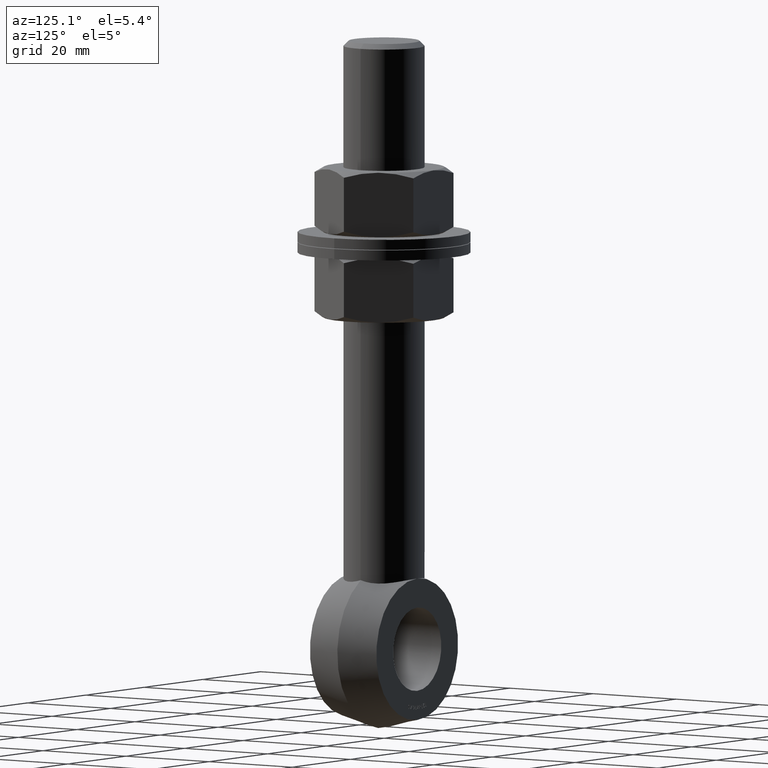
[diagram: clean part render]
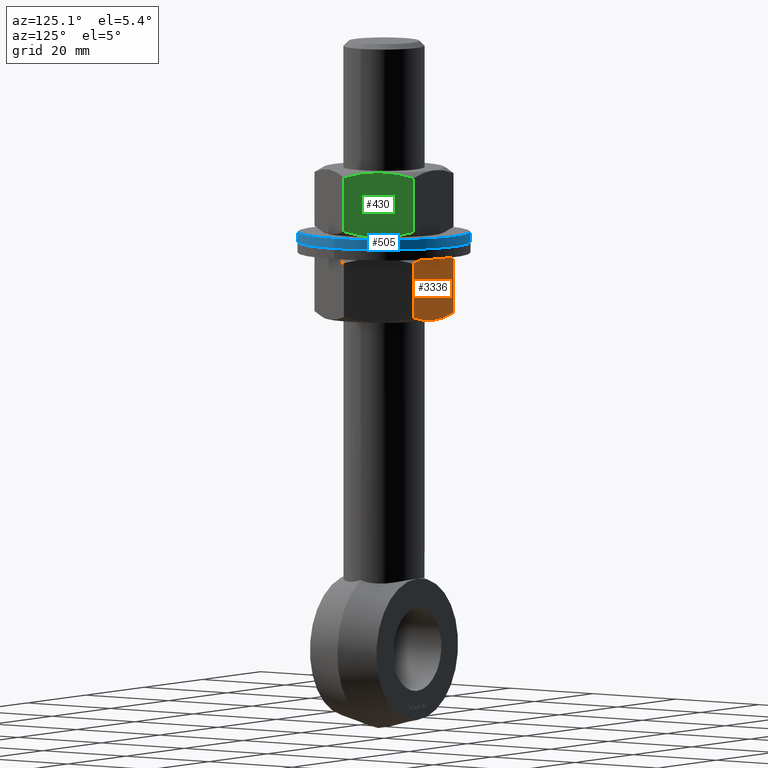
[diagram: same view with three faces highlighted in distinct colors, each labeled with its STEP entity id]
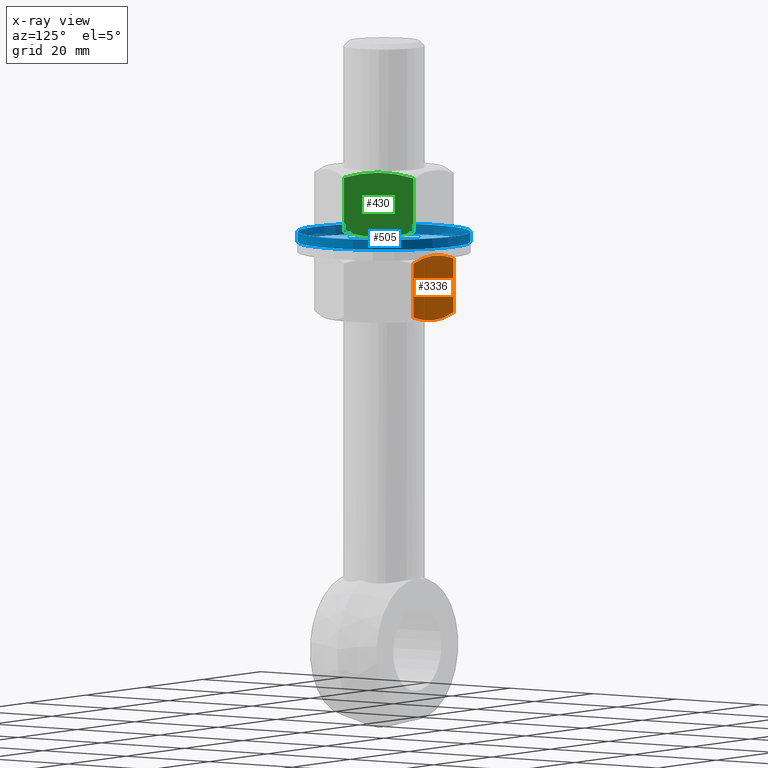
[diagram: x-ray of the same camera — body ghosted, the three highlighted faces saturated]
A machine part, auxiliary view with three faces highlighted in distinct colors.
The next image is the same camera in x-ray (body ghosted, the three faces saturated) — at least one of them is partly hidden behind the body in this view.
Their STEP definitions:

[orange] entity #3336 — the highlighted planar face has unit normal (0, -1, -0).
#224 = DIRECTION ( 'NONE',  ( 1.262449242636256169E-16, 1.000000000000000000, 4.721171583906912730E-46 ) ) ;
#329 = VERTEX_POINT ( 'NONE', #1410 ) ;
#398 = VECTOR ( 'NONE', #788, 1000.000000000000000 ) ;
#426 = CARTESIAN_POINT ( 'NONE',  ( 6.870468203356445258, -11.89999999999980318, -5.337134870022873123 ) ) ;
#608 = CARTESIAN_POINT ( 'NONE',  ( -6.870468203356448811, -11.89999999999980140, 5.337134870023213296 ) ) ;
#617 = EDGE_CURVE ( 'NONE', #3861, #4708, #2948, .T. ) ;
#707 = EDGE_CURVE ( 'NONE', #5217, #4892, #4373, .T. ) ;
#744 = CARTESIAN_POINT ( 'NONE',  ( 6.870468203356445258, -11.89999999999980318, 6.399999999999988809 ) ) ;
#788 = DIRECTION ( 'NONE',  ( -3.900098264966522650E-47, -5.460137570953213873E-46, -1.000000000000000000 ) ) ;
#973 = CARTESIAN_POINT ( 'NONE',  ( -5.752222429522607428, -11.89999999999980140, -5.659944619294646984 ) ) ;
#994 = CARTESIAN_POINT ( 'NONE',  ( -9.227774253162104057E-16, -11.89999999999979963, -6.399999999999648637 ) ) ;
#1125 = CARTESIAN_POINT ( 'NONE',  ( -4.608077819394150509, -11.89999999999979607, 5.930333993001640991 ) ) ;
#1217 = CARTESIAN_POINT ( 'NONE',  ( -6.870468203356448811, -11.89999999999980140, 6.399999999999988809 ) ) ;
#1398 = CARTESIAN_POINT ( 'NONE',  ( -2.315302811759795354, -11.89999999999979963, -6.300079486347296864 ) ) ;
#1400 = ORIENTED_EDGE ( 'NONE', *, *, #3161, .T. ) ;
#1410 = CARTESIAN_POINT ( 'NONE',  ( 6.870468203356445258, -11.89999999999980318, 5.337134870023213296 ) ) ;
#1608 = EDGE_CURVE ( 'NONE', #329, #4604, #4629, .T. ) ;
#1671 = ORIENTED_EDGE ( 'NONE', *, *, #1608, .F. ) ;
#1879 = CARTESIAN_POINT ( 'NONE',  ( 6.870468203356445258, -11.89999999999980318, -5.337134870022873123 ) ) ;
#1949 = CARTESIAN_POINT ( 'NONE',  ( 4.634016648922544945, -11.89999999999980496, -5.924878737540974605 ) ) ;
#2102 = CARTESIAN_POINT ( 'NONE',  ( 2.913877163291768824, -11.89999999999979963, 6.204165162460036242 ) ) ;
#2129 = CARTESIAN_POINT ( 'NONE',  ( -8.283902635212715443E-16, -11.89999999999979963, 6.399999999999988809 ) ) ;
#2302 = CARTESIAN_POINT ( 'NONE',  ( -6.870468203356448811, -11.89999999999980140, -5.337134870022873123 ) ) ;
#2344 = CARTESIAN_POINT ( 'NONE',  ( -9.227774253162104057E-16, -11.89999999999979963, -6.399999999999648637 ) ) ;
#2426 = ORIENTED_EDGE ( 'NONE', *, *, #3290, .T. ) ;
#2527 = EDGE_LOOP ( 'NONE', ( #1671, #2426, #4761, #4010, #5154, #1400 ) ) ;
#2579 = CARTESIAN_POINT ( 'NONE',  ( 2.335116152548812885, -11.89999999999980318, 6.276953164494057269 ) ) ;
#2589 = CARTESIAN_POINT ( 'NONE',  ( -1.161822609306351506, -11.89999999999980318, 6.400000000000101608 ) ) ;
#2638 = DIRECTION ( 'NONE',  ( -3.900098264966522650E-47, -5.460137570953213873E-46, -1.000000000000000000 ) ) ;
#2750 = B_SPLINE_CURVE_WITH_KNOTS ( 'NONE', 3,
 ( #994, #3751, #4228, #4702, #3828, #1949, #5169, #426 ),
 .UNSPECIFIED., .F., .F.,
 ( 4, 2, 2, 4 ),
 ( 0.01949334953155952913, 0.02123285677875558913, 0.02297236402595164567, 0.02645137852034376569 ),
 .UNSPECIFIED. ) ;
#2948 = B_SPLINE_CURVE_WITH_KNOTS ( 'NONE', 3,
 ( #4947, #2589, #3949, #1125, #3427, #608 ),
 .UNSPECIFIED., .F., .F.,
 ( 4, 2, 4 ),
 ( 0.03802109468498315881, 0.04149994113464822859, 0.04497878758431329838 ),
 .UNSPECIFIED. ) ;
#3005 = CARTESIAN_POINT ( 'NONE',  ( -6.870468203356448811, -11.89999999999980140, 6.399999999999988809 ) ) ;
#3161 = EDGE_CURVE ( 'NONE', #4892, #4604, #2750, .T. ) ;
#3290 = EDGE_CURVE ( 'NONE', #329, #3861, #5091, .T. ) ;
#3306 = CARTESIAN_POINT ( 'NONE',  ( -6.870468203356448811, -11.89999999999980140, 5.337134870023213296 ) ) ;
#3336 = ADVANCED_FACE ( 'NONE', ( #4396 ), #3548, .F. ) ;
#3427 = CARTESIAN_POINT ( 'NONE',  ( -5.752222429522585223, -11.89999999999979963, 5.659944619294936530 ) ) ;
#3491 = EDGE_CURVE ( 'NONE', #4708, #5217, #5069, .T. ) ;
#3548 = PLANE ( 'NONE',  #4988 ) ;
#3751 = CARTESIAN_POINT ( 'NONE',  ( 0.5813112769906618738, -11.89999999999979963, -6.399999999999818279 ) ) ;
#3828 = CARTESIAN_POINT ( 'NONE',  ( 2.913877163291788364, -11.89999999999980140, -6.204165162459752025 ) ) ;
#3861 = VERTEX_POINT ( 'NONE', #2129 ) ;
#3941 = CARTESIAN_POINT ( 'NONE',  ( 6.870468203356445258, -11.89999999999980318, 5.337134870023213296 ) ) ;
#3949 = CARTESIAN_POINT ( 'NONE',  ( -2.315302811759795798, -11.89999999999980496, 6.300079486347583746 ) ) ;
#3981 = CARTESIAN_POINT ( 'NONE',  ( 4.634016648922526294, -11.89999999999980318, 5.924878737541258822 ) ) ;
#4010 = ORIENTED_EDGE ( 'NONE', *, *, #3491, .T. ) ;
#4228 = CARTESIAN_POINT ( 'NONE',  ( 1.165064163271405828, -11.89999999999980496, -6.375243651657886979 ) ) ;
#4229 = CARTESIAN_POINT ( 'NONE',  ( -4.608077819394154950, -11.89999999999980318, -5.930333993001360327 ) ) ;
#4373 = B_SPLINE_CURVE_WITH_KNOTS ( 'NONE', 3,
 ( #5693, #973, #4229, #1398, #5170, #2344 ),
 .UNSPECIFIED., .F., .F.,
 ( 4, 2, 4 ),
 ( 0.01254010802794760376, 0.01601672877975356818, 0.01949334953155952913 ),
 .UNSPECIFIED. ) ;
#4396 = FACE_OUTER_BOUND ( 'NONE', #2527, .T. ) ;
#4562 = VECTOR ( 'NONE', #2638, 1000.000000000000000 ) ;
#4604 = VERTEX_POINT ( 'NONE', #1879 ) ;
#4629 = LINE ( 'NONE', #744, #4562 ) ;
#4702 = CARTESIAN_POINT ( 'NONE',  ( 2.335116152548834201, -11.89999999999980140, -6.276953164493773940 ) ) ;
#4708 = VERTEX_POINT ( 'NONE', #3306 ) ;
#4761 = ORIENTED_EDGE ( 'NONE', *, *, #617, .T. ) ;
#4892 = VERTEX_POINT ( 'NONE', #6006 ) ;
#4920 = DIRECTION ( 'NONE',  ( -1.000000000000000000, 1.262449242636256169E-16, -3.900098264966511954E-47 ) ) ;
#4947 = CARTESIAN_POINT ( 'NONE',  ( -8.283902635212715443E-16, -11.89999999999979963, 6.399999999999988809 ) ) ;
#4958 = CARTESIAN_POINT ( 'NONE',  ( -8.283902635212715443E-16, -11.89999999999979963, 6.399999999999988809 ) ) ;
#4979 = CARTESIAN_POINT ( 'NONE',  ( 0.5813112769906609856, -11.89999999999980140, 6.400000000000102496 ) ) ;
#4988 = AXIS2_PLACEMENT_3D ( 'NONE', #3005, #224, #4920 ) ;
#5069 = LINE ( 'NONE', #1217, #398 ) ;
#5091 = B_SPLINE_CURVE_WITH_KNOTS ( 'NONE', 3,
 ( #3941, #5395, #3981, #2102, #2579, #5439, #4979, #4958 ),
 .UNSPECIFIED., .F., .F.,
 ( 4, 2, 2, 4 ),
 ( 0.03105861123558053757, 0.03453985296028184993, 0.03628047382263250437, 0.03802109468498315881 ),
 .UNSPECIFIED. ) ;
#5154 = ORIENTED_EDGE ( 'NONE', *, *, #707, .T. ) ;
#5169 = CARTESIAN_POINT ( 'NONE',  ( 5.759364213957977263, -11.89999999999980318, -5.657882963711484692 ) ) ;
#5170 = CARTESIAN_POINT ( 'NONE',  ( -1.161822609306352394, -11.89999999999980140, -6.399999999999818279 ) ) ;
#5217 = VERTEX_POINT ( 'NONE', #2302 ) ;
#5395 = CARTESIAN_POINT ( 'NONE',  ( 5.759364213957963052, -11.89999999999980140, 5.657882963711774238 ) ) ;
#5439 = CARTESIAN_POINT ( 'NONE',  ( 1.165064163271383624, -11.89999999999980851, 6.375243651658170307 ) ) ;
#5693 = CARTESIAN_POINT ( 'NONE',  ( -6.870468203356448811, -11.89999999999980140, -5.337134870022873123 ) ) ;
#6006 = CARTESIAN_POINT ( 'NONE',  ( -9.227774253162104057E-16, -11.89999999999979963, -6.399999999999648637 ) ) ;

[blue] entity #505 — the highlighted cylindrical surface (bore or boss wall) has radius 17.05 mm, axis along (-0, -0, -1).
#107 = ORIENTED_EDGE ( 'NONE', *, *, #3727, .F. ) ;
#485 = EDGE_CURVE ( 'NONE', #824, #824, #2373, .T. ) ;
#505 = ADVANCED_FACE ( 'NONE', ( #959, #4064 ), #5175, .T. ) ;
#591 = CARTESIAN_POINT ( 'NONE',  ( 0.000000000000000000, 0.000000000000000000, -1.000000000000000888 ) ) ;
#768 = EDGE_LOOP ( 'NONE', ( #4256 ) ) ;
#824 = VERTEX_POINT ( 'NONE', #1756 ) ;
#959 = FACE_OUTER_BOUND ( 'NONE', #4371, .T. ) ;
#1061 = DIRECTION ( 'NONE',  ( 0.000000000000000000, 0.000000000000000000, 1.000000000000000000 ) ) ;
#1149 = DIRECTION ( 'NONE',  ( 1.000000000000000000, 0.000000000000000000, 0.000000000000000000 ) ) ;
#1592 = DIRECTION ( 'NONE',  ( -1.000000000000000000, 0.000000000000000000, 0.000000000000000000 ) ) ;
#1742 = CARTESIAN_POINT ( 'NONE',  ( 17.05000000000000071, 0.000000000000000000, 1.000000000000000888 ) ) ;
#1756 = CARTESIAN_POINT ( 'NONE',  ( 17.05000000000000071, 0.000000000000000000, -1.000000000000000888 ) ) ;
#1864 = VERTEX_POINT ( 'NONE', #1742 ) ;
#1984 = DIRECTION ( 'NONE',  ( 1.000000000000000000, 0.000000000000000000, 0.000000000000000000 ) ) ;
#2373 = CIRCLE ( 'NONE', #4343, 17.05000000000000071 ) ;
#3058 = DIRECTION ( 'NONE',  ( 0.000000000000000000, 0.000000000000000000, 1.000000000000000000 ) ) ;
#3498 = CARTESIAN_POINT ( 'NONE',  ( 0.000000000000000000, 0.000000000000000000, 1.000000000000000888 ) ) ;
#3727 = EDGE_CURVE ( 'NONE', #1864, #1864, #4996, .T. ) ;
#4064 = FACE_OUTER_BOUND ( 'NONE', #768, .T. ) ;
#4256 = ORIENTED_EDGE ( 'NONE', *, *, #485, .T. ) ;
#4343 = AXIS2_PLACEMENT_3D ( 'NONE', #591, #1061, #1984 ) ;
#4371 = EDGE_LOOP ( 'NONE', ( #107 ) ) ;
#4404 = DIRECTION ( 'NONE',  ( -0.000000000000000000, -0.000000000000000000, -1.000000000000000000 ) ) ;
#4420 = AXIS2_PLACEMENT_3D ( 'NONE', #4905, #4404, #1592 ) ;
#4905 = CARTESIAN_POINT ( 'NONE',  ( 0.000000000000000000, 0.000000000000000000, 1.000000000000000888 ) ) ;
#4996 = CIRCLE ( 'NONE', #5752, 17.05000000000000071 ) ;
#5175 = CYLINDRICAL_SURFACE ( 'NONE', #4420, 17.05000000000000071 ) ;
#5752 = AXIS2_PLACEMENT_3D ( 'NONE', #3498, #3058, #1149 ) ;

[green] entity #430 — the highlighted planar face has unit normal (-0.866, -0.5, 0).
#36 = VERTEX_POINT ( 'NONE', #2702 ) ;
#72 = VERTEX_POINT ( 'NONE', #5964 ) ;
#98 = CARTESIAN_POINT ( 'NONE',  ( -10.89096439621675927, 4.936296322328522557, 6.400000000000094502 ) ) ;
#124 = ORIENTED_EDGE ( 'NONE', *, *, #5097, .T. ) ;
#257 = CARTESIAN_POINT ( 'NONE',  ( -11.46939202279295245, 3.934430284597089766, -6.277657943248062367 ) ) ;
#373 = CARTESIAN_POINT ( 'NONE',  ( -6.870468203356452364, 11.89999999999980318, -5.337134870022873123 ) ) ;
#418 = CARTESIAN_POINT ( 'NONE',  ( -8.854296110466695069, 8.463909271411838020, 6.205653652303623424 ) ) ;
#430 = ADVANCED_FACE ( 'NONE', ( #2218 ), #4978, .F. ) ;
#462 = VERTEX_POINT ( 'NONE', #1607 ) ;
#522 = B_SPLINE_CURVE_WITH_KNOTS ( 'NONE', 3,
 ( #4969, #4487, #2612, #257, #3522, #5472, #1599, #3558 ),
 .UNSPECIFIED., .F., .F.,
 ( 4, 2, 2, 4 ),
 ( 0.006952026648765045197, 0.008683475307169660762, 0.01041492396557427806, 0.01387782128238351093 ),
 .UNSPECIFIED. ) ;
#618 = CARTESIAN_POINT ( 'NONE',  ( -10.30570230503461993, 5.949999999999902478, 6.399999999999988809 ) ) ;
#663 = CARTESIAN_POINT ( 'NONE',  ( -7.432427428936739133, 10.92665806951268870, -5.661582180185722457 ) ) ;
#805 = LINE ( 'NONE', #2939, #5689 ) ;
#820 = AXIS2_PLACEMENT_3D ( 'NONE', #5463, #2619, #5378 ) ;
#873 = CARTESIAN_POINT ( 'NONE',  ( -9.142012587276379776, 7.965569715402740947, 6.277657943248343919 ) ) ;
#918 = ORIENTED_EDGE ( 'NONE', *, *, #1922, .T. ) ;
#919 = CARTESIAN_POINT ( 'NONE',  ( -13.74093640671290117, 1.624638731698777190E-15, 5.337134870023213296 ) ) ;
#1168 = CARTESIAN_POINT ( 'NONE',  ( -10.30570230503461993, 5.949999999999902478, -6.399999999999648637 ) ) ;
#1196 = B_SPLINE_CURVE_WITH_KNOTS ( 'NONE', 3,
 ( #2735, #1310, #4156, #873, #418, #3697, #3174, #1266 ),
 .UNSPECIFIED., .F., .F.,
 ( 4, 2, 2, 4 ),
 ( 0.006952026648765101575, 0.008683475307169700660, 0.01041492396557430061, 0.01387782128238350225 ),
 .UNSPECIFIED. ) ;
#1266 = CARTESIAN_POINT ( 'NONE',  ( -6.870468203356452364, 11.89999999999980318, 5.337134870023213296 ) ) ;
#1310 = CARTESIAN_POINT ( 'NONE',  ( -10.01416545763389898, 6.454956631976498826, 6.400000000000095390 ) ) ;
#1435 = EDGE_LOOP ( 'NONE', ( #3060, #124, #3488, #918, #5744, #5127 ) ) ;
#1599 = CARTESIAN_POINT ( 'NONE',  ( -13.18038051927178600, 0.9709112775298688325, -5.660771962533144297 ) ) ;
#1607 = CARTESIAN_POINT ( 'NONE',  ( -10.30570230503461993, 5.949999999999902478, 6.399999999999988809 ) ) ;
#1726 = EDGE_CURVE ( 'NONE', #462, #72, #1196, .T. ) ;
#1814 = VERTEX_POINT ( 'NONE', #373 ) ;
#1844 = EDGE_CURVE ( 'NONE', #36, #2768, #805, .T. ) ;
#1877 = CARTESIAN_POINT ( 'NONE',  ( -13.17897718113260197, 0.9733419304871341327, 5.661582180185997792 ) ) ;
#1922 = EDGE_CURVE ( 'NONE', #72, #1814, #3603, .T. ) ;
#2008 = EDGE_CURVE ( 'NONE', #1814, #6100, #4556, .T. ) ;
#2056 = DIRECTION ( 'NONE',  ( -3.900098264966522650E-47, -5.460137570953213873E-46, -1.000000000000000000 ) ) ;
#2079 = VECTOR ( 'NONE', #2056, 1000.000000000000000 ) ;
#2218 = FACE_OUTER_BOUND ( 'NONE', #1435, .T. ) ;
#2434 = CARTESIAN_POINT ( 'NONE',  ( -13.74093640671290117, 1.509076070273271453E-15, -5.337134870022873123 ) ) ;
#2612 = CARTESIAN_POINT ( 'NONE',  ( -10.89008397097355818, 4.937821263582023334, -6.374877856603246684 ) ) ;
#2619 = DIRECTION ( 'NONE',  ( 0.8660254037844382635, -0.5000000000000008882, -2.346901236637787435E-46 ) ) ;
#2702 = CARTESIAN_POINT ( 'NONE',  ( -13.74093640671290117, 1.624638731698777190E-15, 5.337134870023213296 ) ) ;
#2735 = CARTESIAN_POINT ( 'NONE',  ( -10.30570230503461993, 5.949999999999902478, 6.399999999999988809 ) ) ;
#2768 = VERTEX_POINT ( 'NONE', #2434 ) ;
#2834 = CARTESIAN_POINT ( 'NONE',  ( -10.30570230503461993, 5.949999999999902478, -6.399999999999648637 ) ) ;
#2939 = CARTESIAN_POINT ( 'NONE',  ( -13.74093640671290117, 1.643010684887739890E-15, 6.399999999999988809 ) ) ;
#3060 = ORIENTED_EDGE ( 'NONE', *, *, #1844, .F. ) ;
#3174 = CARTESIAN_POINT ( 'NONE',  ( -7.431024090797567538, 10.92908872246994179, 5.660771962533440060 ) ) ;
#3474 = CARTESIAN_POINT ( 'NONE',  ( -9.142453584376113440, 7.964805886020024595, -6.298703274484449111 ) ) ;
#3488 = ORIENTED_EDGE ( 'NONE', *, *, #1726, .T. ) ;
#3522 = CARTESIAN_POINT ( 'NONE',  ( -11.75710849960264071, 3.436090728587990473, -6.205653652303340095 ) ) ;
#3558 = CARTESIAN_POINT ( 'NONE',  ( -13.74093640671290117, 1.509076070273271453E-15, -5.337134870022873123 ) ) ;
#3603 = LINE ( 'NONE', #4409, #2079 ) ;
#3697 = CARTESIAN_POINT ( 'NONE',  ( -7.996256762627343306, 9.950077016762858051, 5.927940675850870811 ) ) ;
#3822 = EDGE_CURVE ( 'NONE', #6100, #2768, #522, .T. ) ;
#4156 = CARTESIAN_POINT ( 'NONE',  ( -9.721320639095775817, 6.962178736417821590, 6.374877856603529125 ) ) ;
#4409 = CARTESIAN_POINT ( 'NONE',  ( -6.870468203356452364, 11.89999999999980318, 6.399999999999988809 ) ) ;
#4487 = CARTESIAN_POINT ( 'NONE',  ( -10.59723915243542436, 5.445043368023354979, -6.399999999999812061 ) ) ;
#4556 = B_SPLINE_CURVE_WITH_KNOTS ( 'NONE', 3,
 ( #5350, #663, #5390, #3474, #4931, #1168 ),
 .UNSPECIFIED., .F., .F.,
 ( 4, 2, 4 ),
 ( 2.380729678850750000E-07, 0.003476132360866465449, 0.006952026648765045197 ),
 .UNSPECIFIED. ) ;
#4931 = CARTESIAN_POINT ( 'NONE',  ( -9.720440213852564071, 6.963703677671327696, -6.399999999999809397 ) ) ;
#4969 = CARTESIAN_POINT ( 'NONE',  ( -10.30570230503461993, 5.949999999999902478, -6.399999999999648637 ) ) ;
#4978 = PLANE ( 'NONE',  #820 ) ;
#5097 = EDGE_CURVE ( 'NONE', #36, #462, #5445, .T. ) ;
#5127 = ORIENTED_EDGE ( 'NONE', *, *, #3822, .T. ) ;
#5200 = CARTESIAN_POINT ( 'NONE',  ( -12.61291318730591549, 1.953793528130309598, 5.928878535649028336 ) ) ;
#5260 = DIRECTION ( 'NONE',  ( -3.900098264966522650E-47, -5.460137570953213873E-46, -1.000000000000000000 ) ) ;
#5350 = CARTESIAN_POINT ( 'NONE',  ( -6.870468203356452364, 11.89999999999980318, -5.337134870022873123 ) ) ;
#5378 = DIRECTION ( 'NONE',  ( 0.5000000000000007772, 0.8660254037844381525, 5.460137570953220096E-46 ) ) ;
#5390 = CARTESIAN_POINT ( 'NONE',  ( -7.998491422763422953, 9.946206471869519561, -5.928878535648748560 ) ) ;
#5445 = B_SPLINE_CURVE_WITH_KNOTS ( 'NONE', 3,
 ( #919, #1877, #5200, #5775, #98, #618 ),
 .UNSPECIFIED., .F., .F.,
 ( 4, 2, 4 ),
 ( 2.380729678845421633E-07, 0.003476132360866492771, 0.006952026648765101575 ),
 .UNSPECIFIED. ) ;
#5463 = CARTESIAN_POINT ( 'NONE',  ( -6.870468203356452364, 11.89999999999980318, 6.399999999999988809 ) ) ;
#5472 = CARTESIAN_POINT ( 'NONE',  ( -12.61514784744200313, 1.949922983236957119, -5.927940675850583041 ) ) ;
#5689 = VECTOR ( 'NONE', #5260, 1000.000000000000000 ) ;
#5744 = ORIENTED_EDGE ( 'NONE', *, *, #2008, .T. ) ;
#5775 = CARTESIAN_POINT ( 'NONE',  ( -11.46895102569321523, 3.935194113979820774, 6.298703274484733328 ) ) ;
#5964 = CARTESIAN_POINT ( 'NONE',  ( -6.870468203356452364, 11.89999999999980318, 5.337134870023213296 ) ) ;
#6100 = VERTEX_POINT ( 'NONE', #2834 ) ;